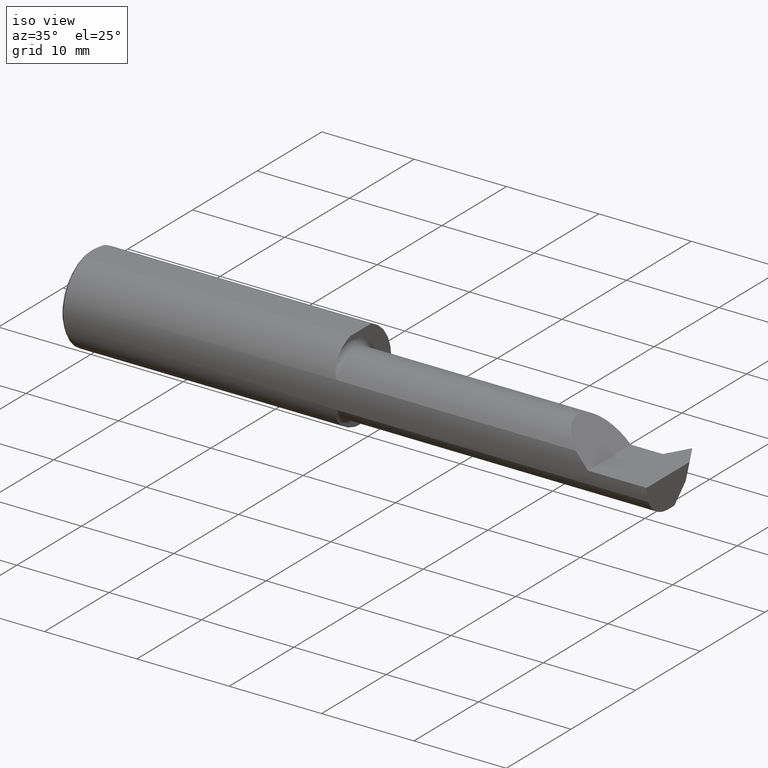
[diagram: clean part render]
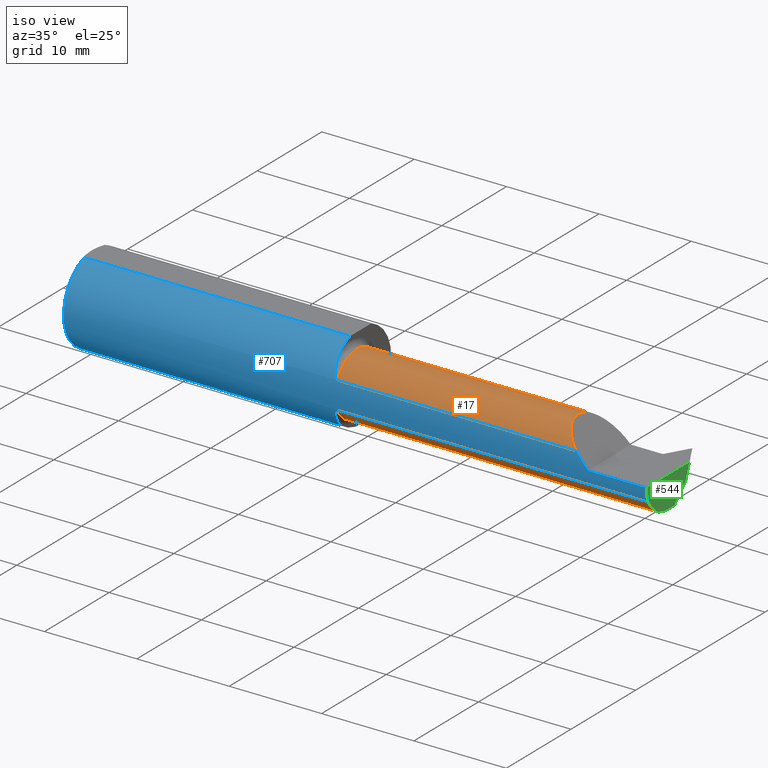
[diagram: same view with three faces highlighted in distinct colors, each labeled with its STEP entity id]
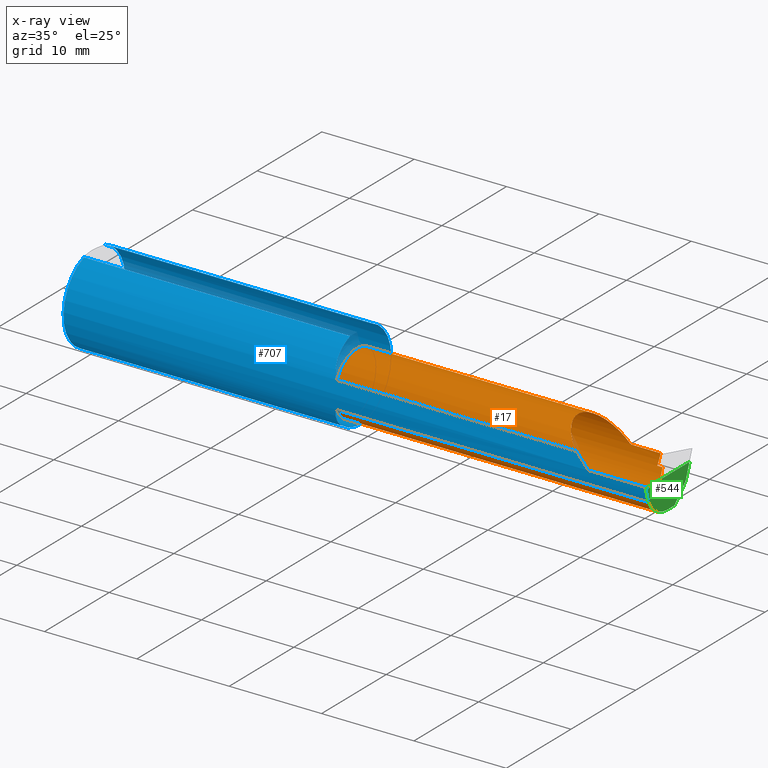
[diagram: x-ray of the same camera — body ghosted, the three highlighted faces saturated]
A machine part, iso view with three faces highlighted in distinct colors.
The next image is the same camera in x-ray (body ghosted, the three faces saturated) — at least one of them is partly hidden behind the body in this view.
Their STEP definitions:

[orange] entity #17 — the highlighted cylindrical surface (partial cylindrical patch) has radius 3.3782 mm, axis along (-1, 0, -0).
#8 = ORIENTED_EDGE ( 'NONE', *, *, #729, .T. ) ;
#17 = ADVANCED_FACE ( 'NONE', ( #757, #592 ), #509, .T. ) ;
#19 = CARTESIAN_POINT ( 'NONE',  ( 2.192691453216397690, -0.1783697086546694455, 0.05730854678360214338 ) ) ;
#21 = CARTESIAN_POINT ( 'NONE',  ( 2.250000000000000000, 0.07464999999999979985, 4.959819536546775670E-16 ) ) ;
#34 = CARTESIAN_POINT ( 'NONE',  ( 1.778260140802781386, -0.1783697086546697230, -0.05730854678360158133 ) ) ;
#40 = LINE ( 'NONE', #107, #774 ) ;
#46 = ORIENTED_EDGE ( 'NONE', *, *, #161, .F. ) ;
#47 = VECTOR ( 'NONE', #169, 39.37007874015748143 ) ;
#50 = ORIENTED_EDGE ( 'NONE', *, *, #67, .T. ) ;
#60 =( BOUNDED_CURVE ( )  B_SPLINE_CURVE ( 3, ( #483, #476, #728, #245 ),
 .UNSPECIFIED., .F., .T. ) 
 B_SPLINE_CURVE_WITH_KNOTS ( ( 4, 4 ),
 ( 1.213003830136084149, 1.570796326794911657 ),
 .UNSPECIFIED. ) 
 CURVE ( )  GEOMETRIC_REPRESENTATION_ITEM ( )  RATIONAL_B_SPLINE_CURVE ( ( 1.000000000000000000, 0.9893604650975277304, 0.9893604650975277304, 1.000000000000000000 ) ) 
 REPRESENTATION_ITEM ( '' )  );
#65 = VERTEX_POINT ( 'NONE', #779 ) ;
#67 = EDGE_CURVE ( 'NONE', #601, #623, #696, .T. ) ;
#68 = CARTESIAN_POINT ( 'NONE',  ( 2.368097682775599289, 0.06622740117003717009, -0.04657758170750794791 ) ) ;
#70 = CARTESIAN_POINT ( 'NONE',  ( 1.150000000000001910, 0.06622740117007291927, -0.04657758170741260056 ) ) ;
#75 = DIRECTION ( 'NONE',  ( 1.000000000000000000, -8.318523153256623909E-17, 0.000000000000000000 ) ) ;
#88 = CARTESIAN_POINT ( 'NONE',  ( 2.581520281605562683, -0.05835000000000024889, -0.1330000000000000626 ) ) ;
#107 = CARTESIAN_POINT ( 'NONE',  ( 1.778260140802781386, -0.1783697086546697230, 0.05730854678360158133 ) ) ;
#110 = EDGE_CURVE ( 'NONE', #660, #369, #640, .T. ) ;
#121 = VERTEX_POINT ( 'NONE', #336 ) ;
#142 = EDGE_LOOP ( 'NONE', ( #8, #606, #535, #50, #806, #46, #784, #672, #501, #184 ) ) ;
#144 =( BOUNDED_CURVE ( )  B_SPLINE_CURVE ( 3, ( #352, #600, #655, #540 ),
 .UNSPECIFIED., .F., .T. ) 
 B_SPLINE_CURVE_WITH_KNOTS ( ( 4, 4 ),
 ( 3.001438763811743904, 3.281746543367842772 ),
 .UNSPECIFIED. ) 
 CURVE ( )  GEOMETRIC_REPRESENTATION_ITEM ( )  RATIONAL_B_SPLINE_CURVE ( ( 1.000000000000000000, 0.9934630068190678509, 0.9934630068190678509, 1.000000000000000000 ) ) 
 REPRESENTATION_ITEM ( '' )  );
#157 = EDGE_CURVE ( 'NONE', #369, #637, #782, .T. ) ;
#161 = EDGE_CURVE ( 'NONE', #453, #121, #60, .T. ) ;
#169 = DIRECTION ( 'NONE',  ( -1.000000000000000000, 8.318523153256623909E-17, -0.000000000000000000 ) ) ;
#174 = CARTESIAN_POINT ( 'NONE',  ( 2.400902952461865247, -0.0009900748573982074124, -0.1330000000000000349 ) ) ;
#180 = CARTESIAN_POINT ( 'NONE',  ( 2.401951558677192455, -0.05835000000000021420, -0.1330000000000000349 ) ) ;
#184 = ORIENTED_EDGE ( 'NONE', *, *, #334, .F. ) ;
#193 = DIRECTION ( 'NONE',  ( 0.000000000000000000, -6.226251301349470739E-15, -1.000000000000000000 ) ) ;
#207 = CARTESIAN_POINT ( 'NONE',  ( 1.175000000000000044, -0.05835000000000011011, 0.000000000000000000 ) ) ;
#208 = DIRECTION ( 'NONE',  ( 0.000000000000000000, -1.000000000000000000, 0.000000000000000000 ) ) ;
#245 = CARTESIAN_POINT ( 'NONE',  ( 2.376520281605562168, 0.07464999999999995250, 0.000000000000000000 ) ) ;
#248 = DIRECTION ( 'NONE',  ( 1.000000000000000000, 0.000000000000000000, 0.000000000000000000 ) ) ;
#267 = DIRECTION ( 'NONE',  ( -1.000000000000000000, 8.318523153256623909E-17, -0.000000000000000000 ) ) ;
#286 = CARTESIAN_POINT ( 'NONE',  ( 2.250000000000000000, 0.07464999999999979985, 4.959819536546775670E-16 ) ) ;
#312 = VERTEX_POINT ( 'NONE', #712 ) ;
#319 = CIRCLE ( 'NONE', #343, 0.1330000000000000349 ) ;
#324 = CARTESIAN_POINT ( 'NONE',  ( 1.150000000000000133, 0.07464999999999989699, 4.959819536546775670E-16 ) ) ;
#333 = CARTESIAN_POINT ( 'NONE',  ( 1.150000000000000133, -0.05835000000000011011, 0.000000000000000000 ) ) ;
#334 = EDGE_CURVE ( 'NONE', #598, #660, #403, .T. ) ;
#336 = CARTESIAN_POINT ( 'NONE',  ( 2.376520281605562168, 0.07464999999999995250, 0.000000000000000000 ) ) ;
#343 = AXIS2_PLACEMENT_3D ( 'NONE', #495, #500, #193 ) ;
#347 = VERTEX_POINT ( 'NONE', #708 ) ;
#352 = CARTESIAN_POINT ( 'NONE',  ( 2.392860499994019730, 0.02163535140251675315, -0.1062607338625887743 ) ) ;
#355 = VECTOR ( 'NONE', #375, 39.37007874015748143 ) ;
#369 = VERTEX_POINT ( 'NONE', #180 ) ;
#375 = DIRECTION ( 'NONE',  ( -1.000000000000000000, 8.318523153256623909E-17, -0.000000000000000000 ) ) ;
#399 = CARTESIAN_POINT ( 'NONE',  ( 2.030319072763994814, -0.1008380660117488836, 0.2196809272360033816 ) ) ;
#401 = CARTESIAN_POINT ( 'NONE',  ( 1.175000000000000044, -0.1783697086546699451, 0.05730854678360065846 ) ) ;
#403 = CIRCLE ( 'NONE', #721, 0.1330000000000000904 ) ;
#405 = VECTOR ( 'NONE', #772, 39.37007874015748143 ) ;
#439 = EDGE_CURVE ( 'NONE', #637, #453, #563, .T. ) ;
#453 = VERTEX_POINT ( 'NONE', #68 ) ;
#454 = VECTOR ( 'NONE', #75, 39.37007874015748143 ) ;
#462 = CARTESIAN_POINT ( 'NONE',  ( 2.192691453216397690, -0.1783697086546694455, 0.05730854678360214338 ) ) ;
#471 = LINE ( 'NONE', #34, #47 ) ;
#476 = CARTESIAN_POINT ( 'NONE',  ( 2.370798808970036919, 0.07181227498230960404, -0.03164015816833461864 ) ) ;
#483 = CARTESIAN_POINT ( 'NONE',  ( 2.368097682775599289, 0.06622740117003717009, -0.04657758170750794791 ) ) ;
#495 = CARTESIAN_POINT ( 'NONE',  ( 2.392860499994019730, -0.05835000000000021420, 0.000000000000000000 ) ) ;
#500 = DIRECTION ( 'NONE',  ( -1.000000000000000000, -0.000000000000000000, -0.000000000000000000 ) ) ;
#501 = ORIENTED_EDGE ( 'NONE', *, *, #110, .F. ) ;
#505 = DIRECTION ( 'NONE',  ( 0.000000000000000000, -1.000000000000000000, 0.000000000000000000 ) ) ;
#509 = CYLINDRICAL_SURFACE ( 'NONE', #636, 0.1330000000000000349 ) ;
#510 = EDGE_LOOP ( 'NONE', ( #737, #750 ) ) ;
#514 = DIRECTION ( 'NONE',  ( -1.000000000000000000, 8.318523153256623909E-17, -0.000000000000000000 ) ) ;
#518 = EDGE_CURVE ( 'NONE', #347, #312, #319, .T. ) ;
#521 = CARTESIAN_POINT ( 'NONE',  ( 2.500000000000000000, -0.05835000000000021420, 0.000000000000000000 ) ) ;
#535 = ORIENTED_EDGE ( 'NONE', *, *, #715, .T. ) ;
#540 = CARTESIAN_POINT ( 'NONE',  ( 2.392860499994019730, 0.04791073386258851152, -0.07998535140251704367 ) ) ;
#541 = VERTEX_POINT ( 'NONE', #401 ) ;
#558 = EDGE_CURVE ( 'NONE', #623, #121, #650, .T. ) ;
#559 = AXIS2_PLACEMENT_3D ( 'NONE', #207, #267, #505 ) ;
#563 = LINE ( 'NONE', #70, #355 ) ;
#574 = CARTESIAN_POINT ( 'NONE',  ( 2.070066830337790265, 0.07464999999999938352, 0.1799331696622082921 ) ) ;
#592 = FACE_BOUND ( 'NONE', #510, .T. ) ;
#596 = DIRECTION ( 'NONE',  ( 1.000000000000000000, -8.318523153256623909E-17, 0.000000000000000000 ) ) ;
#598 = VERTEX_POINT ( 'NONE', #771 ) ;
#600 = CARTESIAN_POINT ( 'NONE',  ( 2.394282592563504952, 0.03159656514907370484, -0.09876265669944515879 ) ) ;
#601 = VERTEX_POINT ( 'NONE', #462 ) ;
#606 = ORIENTED_EDGE ( 'NONE', *, *, #642, .F. ) ;
#607 = DIRECTION ( 'NONE',  ( 0.000000000000000000, 1.797268416884382420E-15, 1.000000000000000000 ) ) ;
#623 = VERTEX_POINT ( 'NONE', #21 ) ;
#636 = AXIS2_PLACEMENT_3D ( 'NONE', #333, #514, #208 ) ;
#637 = VERTEX_POINT ( 'NONE', #766 ) ;
#640 = LINE ( 'NONE', #88, #405 ) ;
#642 = EDGE_CURVE ( 'NONE', #541, #65, #665, .T. ) ;
#650 = LINE ( 'NONE', #324, #454 ) ;
#655 = CARTESIAN_POINT ( 'NONE',  ( 2.394282592563504952, 0.04041265669944486827, -0.08994656514907402312 ) ) ;
#660 = VERTEX_POINT ( 'NONE', #756 ) ;
#662 = CARTESIAN_POINT ( 'NONE',  ( 2.396736032196916000, 0.04613953199661168653, -0.1003050283659494973 ) ) ;
#665 = CIRCLE ( 'NONE', #559, 0.1329999999999998961 ) ;
#672 = ORIENTED_EDGE ( 'NONE', *, *, #157, .F. ) ;
#696 =( BOUNDED_CURVE ( )  B_SPLINE_CURVE ( 3, ( #19, #399, #574, #286 ),
 .UNSPECIFIED., .F., .T. ) 
 B_SPLINE_CURVE_WITH_KNOTS ( ( 4, 4 ),
 ( 5.157869252308497465, 7.853981633974480125 ),
 .UNSPECIFIED. ) 
 CURVE ( )  GEOMETRIC_REPRESENTATION_ITEM ( )  RATIONAL_B_SPLINE_CURVE ( ( 1.000000000000000000, 0.4806019281062881565, 0.4806019281062881565, 1.000000000000000000 ) ) 
 REPRESENTATION_ITEM ( '' )  );
#708 = CARTESIAN_POINT ( 'NONE',  ( 2.392860499994019730, 0.04791073386258851152, -0.07998535140251704367 ) ) ;
#712 = CARTESIAN_POINT ( 'NONE',  ( 2.392860499994019730, 0.02163535140251675315, -0.1062607338625887743 ) ) ;
#715 = EDGE_CURVE ( 'NONE', #541, #601, #40, .T. ) ;
#721 = AXIS2_PLACEMENT_3D ( 'NONE', #521, #248, #607 ) ;
#728 = CARTESIAN_POINT ( 'NONE',  ( 2.373636533987727226, 0.07464999999999981373, -0.01594733324062859101 ) ) ;
#729 = EDGE_CURVE ( 'NONE', #598, #65, #471, .T. ) ;
#734 = EDGE_CURVE ( 'NONE', #312, #347, #144, .T. ) ;
#737 = ORIENTED_EDGE ( 'NONE', *, *, #734, .T. ) ;
#750 = ORIENTED_EDGE ( 'NONE', *, *, #518, .T. ) ;
#756 = CARTESIAN_POINT ( 'NONE',  ( 2.500000000000000000, -0.05835000000000024889, -0.1330000000000000626 ) ) ;
#757 = FACE_OUTER_BOUND ( 'NONE', #142, .T. ) ;
#766 = CARTESIAN_POINT ( 'NONE',  ( 2.390937163859554015, 0.06622740117007173966, -0.04657758170751557375 ) ) ;
#771 = CARTESIAN_POINT ( 'NONE',  ( 2.500000000000000000, -0.1783697086546693067, -0.05730854678360169235 ) ) ;
#772 = DIRECTION ( 'NONE',  ( -1.000000000000000000, -0.000000000000000000, -0.000000000000000000 ) ) ;
#774 = VECTOR ( 'NONE', #596, 39.37007874015748143 ) ;
#779 = CARTESIAN_POINT ( 'NONE',  ( 1.175000000000000044, -0.1783697086546698063, -0.05730854678360088050 ) ) ;
#782 =( BOUNDED_CURVE ( )  B_SPLINE_CURVE ( 3, ( #798, #174, #662, #787 ),
 .UNSPECIFIED., .F., .T. ) 
 B_SPLINE_CURVE_WITH_KNOTS ( ( 4, 4 ),
 ( 3.320488901919213198, 4.533492732055319330 ),
 .UNSPECIFIED. ) 
 CURVE ( )  GEOMETRIC_REPRESENTATION_ITEM ( )  RATIONAL_B_SPLINE_CURVE ( ( 1.000000000000000000, 0.8810979586281001419, 0.8810979586281001419, 1.000000000000000000 ) ) 
 REPRESENTATION_ITEM ( '' )  );
#784 = ORIENTED_EDGE ( 'NONE', *, *, #439, .F. ) ;
#787 = CARTESIAN_POINT ( 'NONE',  ( 2.390937163859554015, 0.06622740117007173966, -0.04657758170751557375 ) ) ;
#798 = CARTESIAN_POINT ( 'NONE',  ( 2.401951558677192455, -0.05835000000000021420, -0.1330000000000000349 ) ) ;
#806 = ORIENTED_EDGE ( 'NONE', *, *, #558, .T. ) ;

[blue] entity #707 — the highlighted cylindrical surface (partial cylindrical patch) has radius 4.7587 mm, axis along (-1, -0, -0).
#3 = EDGE_CURVE ( 'NONE', #503, #197, #700, .T. ) ;
#6 = DIRECTION ( 'NONE',  ( 1.000000000000000000, -8.318523153256623909E-17, 0.000000000000000000 ) ) ;
#7 = CARTESIAN_POINT ( 'NONE',  ( 0.01500000000000093273, 0.000000000000000000, 0.000000000000000000 ) ) ;
#15 = ORIENTED_EDGE ( 'NONE', *, *, #306, .T. ) ;
#28 = CARTESIAN_POINT ( 'NONE',  ( 1.167163479082083954, -0.1755340703778151268, 0.06552011612887555236 ) ) ;
#34 = CARTESIAN_POINT ( 'NONE',  ( 1.778260140802781386, -0.1783697086546697230, -0.05730854678360158133 ) ) ;
#40 = LINE ( 'NONE', #107, #774 ) ;
#47 = VECTOR ( 'NONE', #169, 39.37007874015748143 ) ;
#48 = EDGE_CURVE ( 'NONE', #62, #202, #269, .T. ) ;
#49 = CARTESIAN_POINT ( 'NONE',  ( 1.152207105173797208, -0.1438831799119806576, 0.1203810775388764326 ) ) ;
#54 =( BOUNDED_CURVE ( )  B_SPLINE_CURVE ( 3, ( #363, #670, #307, #467 ),
 .UNSPECIFIED., .F., .T. ) 
 B_SPLINE_CURVE_WITH_KNOTS ( ( 4, 4 ),
 ( 4.712388980384690562, 5.023262387692865261 ),
 .UNSPECIFIED. ) 
 CURVE ( )  GEOMETRIC_REPRESENTATION_ITEM ( )  RATIONAL_B_SPLINE_CURVE ( ( 1.000000000000000000, 0.9919626788073504509, 0.9919626788073504509, 1.000000000000000000 ) ) 
 REPRESENTATION_ITEM ( '' )  );
#55 = CARTESIAN_POINT ( 'NONE',  ( 2.500000000000000000, 0.000000000000000000, 0.000000000000000000 ) ) ;
#58 = DIRECTION ( 'NONE',  ( 0.000000000000000000, 0.000000000000000000, -1.000000000000000000 ) ) ;
#62 = VERTEX_POINT ( 'NONE', #327 ) ;
#65 = VERTEX_POINT ( 'NONE', #779 ) ;
#71 = ORIENTED_EDGE ( 'NONE', *, *, #470, .F. ) ;
#76 = DIRECTION ( 'NONE',  ( 0.000000000000000000, 0.000000000000000000, -1.000000000000000000 ) ) ;
#89 = VERTEX_POINT ( 'NONE', #463 ) ;
#90 = CARTESIAN_POINT ( 'NONE',  ( 1.158844572613993984, -0.1652240583779477356, 0.08882027308793256914 ) ) ;
#99 = AXIS2_PLACEMENT_3D ( 'NONE', #767, #444, #76 ) ;
#100 = DIRECTION ( 'NONE',  ( -1.000000000000000000, -0.000000000000000000, -0.000000000000000000 ) ) ;
#105 = CARTESIAN_POINT ( 'NONE',  ( 1.150000000000000133, -0.06325108694718235836, 0.1763499999999999235 ) ) ;
#107 = CARTESIAN_POINT ( 'NONE',  ( 1.778260140802781386, -0.1783697086546697230, 0.05730854678360158133 ) ) ;
#113 = CARTESIAN_POINT ( 'NONE',  ( 1.172655856876671399, -0.1781552959228009658, 0.05797775639604549336 ) ) ;
#125 = CARTESIAN_POINT ( 'NONE',  ( 1.149999999999999689, -0.1160303770351326785, -0.1470951192429067189 ) ) ;
#133 = B_SPLINE_CURVE_WITH_KNOTS ( 'NONE', 3,
 ( #377, #550, #188, #249, #803, #612, #673, #622, #368, #201, #742, #560, #321, #125 ),
 .UNSPECIFIED., .F., .F.,
 ( 4, 2, 2, 2, 2, 2, 4 ),
 ( 1.965724206579997936E-07, 9.384097494425176409E-05, 0.0001874853774678455120, 0.0003747741825150328453, 0.0007493517926094115777, 0.001498507012798170127, 0.002996817453175685923 ),
 .UNSPECIFIED. ) ;
#140 = CARTESIAN_POINT ( 'NONE',  ( 2.500000000000000000, -0.1873499999999999888, 0.000000000000000000 ) ) ;
#158 = DIRECTION ( 'NONE',  ( -1.000000000000000000, -0.000000000000000000, -0.000000000000000000 ) ) ;
#169 = DIRECTION ( 'NONE',  ( -1.000000000000000000, 8.318523153256623909E-17, -0.000000000000000000 ) ) ;
#178 = ORIENTED_EDGE ( 'NONE', *, *, #585, .F. ) ;
#183 = CARTESIAN_POINT ( 'NONE',  ( 1.149999999999999689, -0.1160303770351326785, 0.1470951192429067189 ) ) ;
#187 = EDGE_CURVE ( 'NONE', #763, #601, #54, .T. ) ;
#188 = CARTESIAN_POINT ( 'NONE',  ( 1.172632702519553760, -0.1781504652642093567, -0.05799271583144235270 ) ) ;
#190 = AXIS2_PLACEMENT_3D ( 'NONE', #7, #753, #58 ) ;
#197 = VERTEX_POINT ( 'NONE', #105 ) ;
#201 = CARTESIAN_POINT ( 'NONE',  ( 1.158867519642199584, -0.1652587220708489901, -0.08874743406640223098 ) ) ;
#202 = VERTEX_POINT ( 'NONE', #597 ) ;
#205 = DIRECTION ( 'NONE',  ( 0.000000000000000000, 1.000000000000000000, 0.000000000000000000 ) ) ;
#218 = CARTESIAN_POINT ( 'NONE',  ( 1.150459820461684712, -0.1306920593659785523, 0.1345866223280899054 ) ) ;
#225 = LINE ( 'NONE', #542, #481 ) ;
#230 = CARTESIAN_POINT ( 'NONE',  ( 1.170156893127637820, -0.1773094052629750617, 0.06051821018280337250 ) ) ;
#243 = EDGE_LOOP ( 'NONE', ( #250, #620, #15, #731, #314, #686, #547, #381, #264, #473, #178, #273, #71 ) ) ;
#249 = CARTESIAN_POINT ( 'NONE',  ( 1.170855552425395851, -0.1776175334603407041, -0.05960499283470673676 ) ) ;
#250 = ORIENTED_EDGE ( 'NONE', *, *, #729, .F. ) ;
#252 = EDGE_CURVE ( 'NONE', #197, #301, #538, .T. ) ;
#260 = CARTESIAN_POINT ( 'NONE',  ( 0.01500000000000093273, -0.06325108694718235836, 0.1763499999999999235 ) ) ;
#264 = ORIENTED_EDGE ( 'NONE', *, *, #493, .T. ) ;
#268 = CARTESIAN_POINT ( 'NONE',  ( 0.000000000000000000, -0.06325108694718235836, 0.1763499999999999235 ) ) ;
#269 = CIRCLE ( 'NONE', #99, 0.1873499999999999888 ) ;
#273 = ORIENTED_EDGE ( 'NONE', *, *, #765, .F. ) ;
#280 = DIRECTION ( 'NONE',  ( -1.000000000000000000, -0.000000000000000000, -0.000000000000000000 ) ) ;
#301 = VERTEX_POINT ( 'NONE', #183 ) ;
#302 = EDGE_CURVE ( 'NONE', #598, #641, #676, .T. ) ;
#306 = EDGE_CURVE ( 'NONE', #641, #763, #225, .T. ) ;
#307 = CARTESIAN_POINT ( 'NONE',  ( 2.211249739839922235, -0.1843323154515827400, 0.03875026016007727947 ) ) ;
#314 = ORIENTED_EDGE ( 'NONE', *, *, #715, .F. ) ;
#321 = CARTESIAN_POINT ( 'NONE',  ( 1.149999999999999245, -0.1312984737625756404, -0.1350514632126302572 ) ) ;
#327 = CARTESIAN_POINT ( 'NONE',  ( 0.01500000000000093273, 0.000000000000000000, -0.1873499999999999888 ) ) ;
#335 = CARTESIAN_POINT ( 'NONE',  ( 0.000000000000000000, 0.06325108694718235836, 0.1763499999999999235 ) ) ;
#345 = CYLINDRICAL_SURFACE ( 'NONE', #625, 0.1873499999999999888 ) ;
#363 = CARTESIAN_POINT ( 'NONE',  ( 2.250000000000000000, -0.1873499999999999888, 9.184850993605143507E-17 ) ) ;
#364 = DIRECTION ( 'NONE',  ( 0.000000000000000000, 0.000000000000000000, 1.000000000000000000 ) ) ;
#368 = CARTESIAN_POINT ( 'NONE',  ( 1.162851115778101851, -0.1712424833498266130, -0.07614241156969944746 ) ) ;
#372 = DIRECTION ( 'NONE',  ( 0.000000000000000000, 1.000000000000000000, 0.000000000000000000 ) ) ;
#377 = CARTESIAN_POINT ( 'NONE',  ( 1.175000000000000044, -0.1783697086546698063, -0.05730854678360088050 ) ) ;
#379 = VECTOR ( 'NONE', #280, 39.37007874015748143 ) ;
#381 = ORIENTED_EDGE ( 'NONE', *, *, #3, .F. ) ;
#382 = DIRECTION ( 'NONE',  ( 1.000000000000000000, -8.318523153256623909E-17, 0.000000000000000000 ) ) ;
#392 = AXIS2_PLACEMENT_3D ( 'NONE', #433, #6, #372 ) ;
#401 = CARTESIAN_POINT ( 'NONE',  ( 1.175000000000000044, -0.1783697086546699451, 0.05730854678360065846 ) ) ;
#417 = EDGE_CURVE ( 'NONE', #301, #541, #457, .T. ) ;
#423 = CARTESIAN_POINT ( 'NONE',  ( 1.153482061302896433, -0.1498697720275267709, 0.1128244190103250555 ) ) ;
#433 = CARTESIAN_POINT ( 'NONE',  ( 1.150000000000000133, 0.000000000000000000, 0.000000000000000000 ) ) ;
#444 = DIRECTION ( 'NONE',  ( 1.000000000000000000, 0.000000000000000000, 0.000000000000000000 ) ) ;
#445 = CARTESIAN_POINT ( 'NONE',  ( 1.149999999999999689, -0.1160303770351326785, -0.1470951192429067189 ) ) ;
#455 = CARTESIAN_POINT ( 'NONE',  ( 1.156810654711052377, -0.1605151270937295038, 0.09708342838344825865 ) ) ;
#457 = B_SPLINE_CURVE_WITH_KNOTS ( 'NONE', 3,
 ( #799, #589, #218, #49, #423, #455, #90, #584, #479, #28, #526, #230, #477, #113, #730, #605 ),
 .UNSPECIFIED., .F., .F.,
 ( 4, 2, 2, 2, 2, 2, 2, 4 ),
 ( 0.0004765446698425100419, 0.001211022660623656223, 0.001945500651404802241, 0.002679978642185948910, 0.003047217637576522028, 0.003230837135271810538, 0.003322646884119457612, 0.003414456632967104686 ),
 .UNSPECIFIED. ) ;
#461 = CARTESIAN_POINT ( 'NONE',  ( 1.150000000000000133, 0.000000000000000000, 0.000000000000000000 ) ) ;
#462 = CARTESIAN_POINT ( 'NONE',  ( 2.192691453216397690, -0.1783697086546694455, 0.05730854678360214338 ) ) ;
#463 = CARTESIAN_POINT ( 'NONE',  ( 1.150000000000000133, 0.06325108694718235836, 0.1763499999999999235 ) ) ;
#464 = CIRCLE ( 'NONE', #582, 0.1873499999999999888 ) ;
#466 = CARTESIAN_POINT ( 'NONE',  ( 0.000000000000000000, 0.000000000000000000, 0.000000000000000000 ) ) ;
#467 = CARTESIAN_POINT ( 'NONE',  ( 2.192691453216397690, -0.1783697086546694455, 0.05730854678360214338 ) ) ;
#470 = EDGE_CURVE ( 'NONE', #65, #800, #133, .T. ) ;
#471 = LINE ( 'NONE', #34, #47 ) ;
#473 = ORIENTED_EDGE ( 'NONE', *, *, #48, .T. ) ;
#477 = CARTESIAN_POINT ( 'NONE',  ( 1.170882408083212534, -0.1776276410483821067, 0.05957475000070986543 ) ) ;
#479 = CARTESIAN_POINT ( 'NONE',  ( 1.164343418362563387, -0.1730952584121433491, 0.07182162584496175339 ) ) ;
#481 = VECTOR ( 'NONE', #158, 39.37007874015748143 ) ;
#493 = EDGE_CURVE ( 'NONE', #503, #62, #802, .T. ) ;
#503 = VERTEX_POINT ( 'NONE', #260 ) ;
#506 = DIRECTION ( 'NONE',  ( 1.000000000000000000, 0.000000000000000000, 0.000000000000000000 ) ) ;
#517 = LINE ( 'NONE', #335, #379 ) ;
#526 = CARTESIAN_POINT ( 'NONE',  ( 1.168195961774045166, -0.1762973784583240222, 0.06343092843761212463 ) ) ;
#538 = CIRCLE ( 'NONE', #392, 0.1873499999999999888 ) ;
#541 = VERTEX_POINT ( 'NONE', #401 ) ;
#542 = CARTESIAN_POINT ( 'NONE',  ( 3.374459510989174253E-31, -0.1873499999999999610, 9.184850993605140056E-16 ) ) ;
#547 = ORIENTED_EDGE ( 'NONE', *, *, #252, .F. ) ;
#550 = CARTESIAN_POINT ( 'NONE',  ( 1.173749915749442430, -0.1783697086546699451, -0.05730854678360073479 ) ) ;
#560 = CARTESIAN_POINT ( 'NONE',  ( 1.151810233260114780, -0.1445504080075243614, -0.1207082908324040305 ) ) ;
#582 = AXIS2_PLACEMENT_3D ( 'NONE', #461, #382, #205 ) ;
#584 = CARTESIAN_POINT ( 'NONE',  ( 1.162861924135777159, -0.1712588160411991911, 0.07610809679489624613 ) ) ;
#585 = EDGE_CURVE ( 'NONE', #89, #202, #517, .T. ) ;
#589 = CARTESIAN_POINT ( 'NONE',  ( 1.149999999999999911, -0.1236042208126966330, 0.1411207813203497474 ) ) ;
#590 = CARTESIAN_POINT ( 'NONE',  ( 2.250000000000000000, -0.1873499999999999888, 9.184850993605143507E-17 ) ) ;
#591 = FACE_OUTER_BOUND ( 'NONE', #243, .T. ) ;
#596 = DIRECTION ( 'NONE',  ( 1.000000000000000000, -8.318523153256623909E-17, 0.000000000000000000 ) ) ;
#597 = CARTESIAN_POINT ( 'NONE',  ( 0.01500000000000093273, 0.06325108694718235836, 0.1763499999999999235 ) ) ;
#598 = VERTEX_POINT ( 'NONE', #771 ) ;
#601 = VERTEX_POINT ( 'NONE', #462 ) ;
#605 = CARTESIAN_POINT ( 'NONE',  ( 1.175000000000000044, -0.1783697086546699451, 0.05730854678360065846 ) ) ;
#612 = CARTESIAN_POINT ( 'NONE',  ( 1.168162645443746150, -0.1762760481395253820, -0.06349063590883358144 ) ) ;
#620 = ORIENTED_EDGE ( 'NONE', *, *, #302, .T. ) ;
#622 = CARTESIAN_POINT ( 'NONE',  ( 1.164331470962522097, -0.1730809661842631353, -0.07185561948439479762 ) ) ;
#625 = AXIS2_PLACEMENT_3D ( 'NONE', #466, #100, #659 ) ;
#641 = VERTEX_POINT ( 'NONE', #140 ) ;
#652 = VECTOR ( 'NONE', #506, 39.37007874015748143 ) ;
#659 = DIRECTION ( 'NONE',  ( 0.000000000000000000, 0.000000000000000000, 1.000000000000000000 ) ) ;
#670 = CARTESIAN_POINT ( 'NONE',  ( 2.230507368514859312, -0.1873499999999999888, 0.01949263148514072258 ) ) ;
#673 = CARTESIAN_POINT ( 'NONE',  ( 1.167141984682263267, -0.1755174329696194413, -0.06556455082928733247 ) ) ;
#676 = CIRCLE ( 'NONE', #688, 0.1873499999999999888 ) ;
#686 = ORIENTED_EDGE ( 'NONE', *, *, #417, .F. ) ;
#688 = AXIS2_PLACEMENT_3D ( 'NONE', #55, #795, #364 ) ;
#700 = LINE ( 'NONE', #268, #652 ) ;
#707 = ADVANCED_FACE ( 'NONE', ( #591 ), #345, .T. ) ;
#715 = EDGE_CURVE ( 'NONE', #541, #601, #40, .T. ) ;
#729 = EDGE_CURVE ( 'NONE', #598, #65, #471, .T. ) ;
#730 = CARTESIAN_POINT ( 'NONE',  ( 1.173764212023053144, -0.1783697086546806032, 0.05730854678356845505 ) ) ;
#731 = ORIENTED_EDGE ( 'NONE', *, *, #187, .T. ) ;
#742 = CARTESIAN_POINT ( 'NONE',  ( 1.156840882823496619, -0.1605979928433053372, -0.09695168669191454869 ) ) ;
#753 = DIRECTION ( 'NONE',  ( 1.000000000000000000, 0.000000000000000000, 0.000000000000000000 ) ) ;
#763 = VERTEX_POINT ( 'NONE', #590 ) ;
#765 = EDGE_CURVE ( 'NONE', #800, #89, #464, .T. ) ;
#767 = CARTESIAN_POINT ( 'NONE',  ( 0.01500000000000093273, 0.000000000000000000, 0.000000000000000000 ) ) ;
#771 = CARTESIAN_POINT ( 'NONE',  ( 2.500000000000000000, -0.1783697086546693067, -0.05730854678360169235 ) ) ;
#774 = VECTOR ( 'NONE', #596, 39.37007874015748143 ) ;
#779 = CARTESIAN_POINT ( 'NONE',  ( 1.175000000000000044, -0.1783697086546698063, -0.05730854678360088050 ) ) ;
#795 = DIRECTION ( 'NONE',  ( -1.000000000000000000, -0.000000000000000000, -0.000000000000000000 ) ) ;
#799 = CARTESIAN_POINT ( 'NONE',  ( 1.149999999999999689, -0.1160303770351326785, 0.1470951192429067189 ) ) ;
#800 = VERTEX_POINT ( 'NONE', #445 ) ;
#802 = CIRCLE ( 'NONE', #190, 0.1873499999999999888 ) ;
#803 = CARTESIAN_POINT ( 'NONE',  ( 1.170126530293609690, -0.1772957297413649824, -0.06055838166121984417 ) ) ;

[green] entity #544 — the highlighted planar face has unit normal (-1, 0, -0).
#5 = VECTOR ( 'NONE', #569, 39.37007874015748143 ) ;
#11 = ORIENTED_EDGE ( 'NONE', *, *, #334, .T. ) ;
#18 = LINE ( 'NONE', #458, #5 ) ;
#23 = VERTEX_POINT ( 'NONE', #630 ) ;
#55 = CARTESIAN_POINT ( 'NONE',  ( 2.500000000000000000, 0.000000000000000000, 0.000000000000000000 ) ) ;
#61 = DIRECTION ( 'NONE',  ( 0.000000000000000000, 0.3401001459858907228, 0.9403892229818331394 ) ) ;
#93 = CARTESIAN_POINT ( 'NONE',  ( 2.500000000000000000, 0.000000000000000000, 0.000000000000000000 ) ) ;
#98 = AXIS2_PLACEMENT_3D ( 'NONE', #93, #450, #271 ) ;
#128 = CARTESIAN_POINT ( 'NONE',  ( 2.500000000000000000, 0.05101335071013886335, -0.06499999999999907241 ) ) ;
#140 = CARTESIAN_POINT ( 'NONE',  ( 2.500000000000000000, -0.1873499999999999888, 0.000000000000000000 ) ) ;
#185 = CARTESIAN_POINT ( 'NONE',  ( 2.500000000000000000, 0.05101335071013886335, -0.06499999999999907241 ) ) ;
#204 = VECTOR ( 'NONE', #658, 39.37007874015748143 ) ;
#210 = FACE_OUTER_BOUND ( 'NONE', #725, .T. ) ;
#223 = EDGE_CURVE ( 'NONE', #240, #641, #572, .T. ) ;
#224 = ORIENTED_EDGE ( 'NONE', *, *, #251, .F. ) ;
#235 = CARTESIAN_POINT ( 'NONE',  ( 2.500000000000000000, 0.000000000000000000, 0.000000000000000000 ) ) ;
#240 = VERTEX_POINT ( 'NONE', #683 ) ;
#248 = DIRECTION ( 'NONE',  ( 1.000000000000000000, 0.000000000000000000, 0.000000000000000000 ) ) ;
#251 = EDGE_CURVE ( 'NONE', #485, #23, #491, .T. ) ;
#271 = DIRECTION ( 'NONE',  ( -0.000000000000000000, 0.000000000000000000, 1.000000000000000000 ) ) ;
#277 = ORIENTED_EDGE ( 'NONE', *, *, #595, .T. ) ;
#297 = VECTOR ( 'NONE', #61, 39.37007874015748143 ) ;
#302 = EDGE_CURVE ( 'NONE', #598, #641, #676, .T. ) ;
#332 = PLANE ( 'NONE',  #98 ) ;
#334 = EDGE_CURVE ( 'NONE', #598, #660, #403, .T. ) ;
#364 = DIRECTION ( 'NONE',  ( 0.000000000000000000, 0.000000000000000000, 1.000000000000000000 ) ) ;
#403 = CIRCLE ( 'NONE', #721, 0.1330000000000000904 ) ;
#450 = DIRECTION ( 'NONE',  ( -1.000000000000000000, 0.000000000000000000, -0.000000000000000000 ) ) ;
#458 = CARTESIAN_POINT ( 'NONE',  ( 2.500000000000000000, 0.000000000000000000, -0.1330000000000000626 ) ) ;
#469 = VECTOR ( 'NONE', #744, 39.37007874015748143 ) ;
#485 = VERTEX_POINT ( 'NONE', #185 ) ;
#491 = LINE ( 'NONE', #128, #469 ) ;
#516 = EDGE_CURVE ( 'NONE', #485, #240, #679, .T. ) ;
#521 = CARTESIAN_POINT ( 'NONE',  ( 2.500000000000000000, -0.05835000000000021420, 0.000000000000000000 ) ) ;
#544 = ADVANCED_FACE ( 'NONE', ( #210 ), #332, .F. ) ;
#565 = ORIENTED_EDGE ( 'NONE', *, *, #516, .T. ) ;
#569 = DIRECTION ( 'NONE',  ( 0.000000000000000000, 1.000000000000000000, 0.000000000000000000 ) ) ;
#572 = LINE ( 'NONE', #235, #204 ) ;
#576 = ORIENTED_EDGE ( 'NONE', *, *, #302, .F. ) ;
#595 = EDGE_CURVE ( 'NONE', #660, #23, #18, .T. ) ;
#598 = VERTEX_POINT ( 'NONE', #771 ) ;
#607 = DIRECTION ( 'NONE',  ( 0.000000000000000000, 1.797268416884382420E-15, 1.000000000000000000 ) ) ;
#614 = CARTESIAN_POINT ( 'NONE',  ( 2.500000000000000000, 0.06590145616573735154, -0.02383384912853583198 ) ) ;
#630 = CARTESIAN_POINT ( 'NONE',  ( 2.500000000000000000, -0.01698664928986216155, -0.1330000000000000626 ) ) ;
#641 = VERTEX_POINT ( 'NONE', #140 ) ;
#658 = DIRECTION ( 'NONE',  ( 0.000000000000000000, -1.000000000000000000, 0.000000000000000000 ) ) ;
#660 = VERTEX_POINT ( 'NONE', #756 ) ;
#669 = ORIENTED_EDGE ( 'NONE', *, *, #223, .T. ) ;
#676 = CIRCLE ( 'NONE', #688, 0.1873499999999999888 ) ;
#679 = LINE ( 'NONE', #614, #297 ) ;
#683 = CARTESIAN_POINT ( 'NONE',  ( 2.500000000000000000, 0.07452118017992603871, 0.000000000000000000 ) ) ;
#688 = AXIS2_PLACEMENT_3D ( 'NONE', #55, #795, #364 ) ;
#721 = AXIS2_PLACEMENT_3D ( 'NONE', #521, #248, #607 ) ;
#725 = EDGE_LOOP ( 'NONE', ( #224, #565, #669, #576, #11, #277 ) ) ;
#744 = DIRECTION ( 'NONE',  ( 0.000000000000000000, -0.7071067811865479058, -0.7071067811865472397 ) ) ;
#756 = CARTESIAN_POINT ( 'NONE',  ( 2.500000000000000000, -0.05835000000000024889, -0.1330000000000000626 ) ) ;
#771 = CARTESIAN_POINT ( 'NONE',  ( 2.500000000000000000, -0.1783697086546693067, -0.05730854678360169235 ) ) ;
#795 = DIRECTION ( 'NONE',  ( -1.000000000000000000, -0.000000000000000000, -0.000000000000000000 ) ) ;